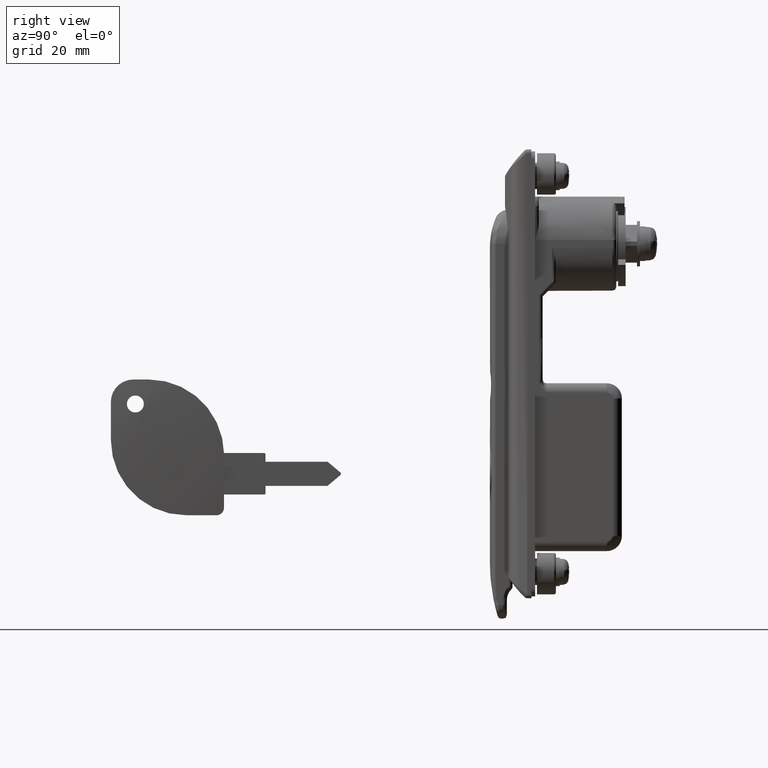
[diagram: clean part render]
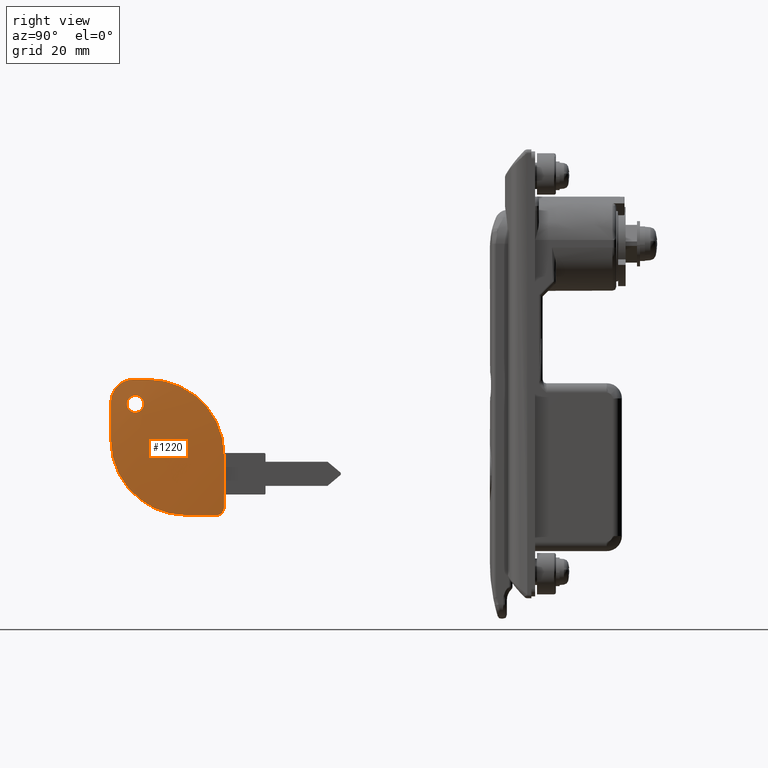
[diagram: same view with one face highlighted and labeled with its STEP entity id]
A machine part, right view. The second image highlights one B-rep face of the part: STEP entity #1220.
In plain terms, the highlighted face is a freeform B-spline surface patch.
Its self-contained STEP definition (entity closure, byte-faithful):
#97=CARTESIAN_POINT('',(2.828875296362364,-96.452702638445885,-44.133518693779713));
#98=VERTEX_POINT('',#97);
#104=CARTESIAN_POINT('',(2.667048114981276,-96.406992415235152,-40.911029630677390));
#105=VERTEX_POINT('',#104);
#106=CARTESIAN_POINT('',(2.828875296362364,-96.452702638445885,-44.133518693779713));
#107=CARTESIAN_POINT('',(2.828726183394759,-96.438598106582731,-44.120154340570402));
#108=CARTESIAN_POINT('',(2.828561309525941,-96.424661572767576,-44.106603493056447));
#109=CARTESIAN_POINT('',(2.827698927807004,-96.358903865655279,-44.041001061670052));
#110=CARTESIAN_POINT('',(2.826791651325440,-96.309318635101093,-43.986467362143628));
#111=CARTESIAN_POINT('',(2.825082339009326,-96.238654260348611,-43.900544496002993));
#112=CARTESIAN_POINT('',(2.824453535437805,-96.215708237355869,-43.871189940987797));
#113=CARTESIAN_POINT('',(2.823093322385487,-96.171568632427991,-43.811753777692012));
#114=CARTESIAN_POINT('',(2.822360464824501,-96.150307933269545,-43.781594017434870));
#115=CARTESIAN_POINT('',(2.818436854467718,-96.047981845679260,-43.628624002757988));
#116=CARTESIAN_POINT('',(2.814475540433375,-95.978735141806453,-43.499362088029237));
#117=CARTESIAN_POINT('',(2.807293883598614,-95.893876109521514,-43.295091360775359));
#118=CARTESIAN_POINT('',(2.804675596149899,-95.868678412614216,-43.224861893925997));
#119=CARTESIAN_POINT('',(2.799110259926788,-95.825696454351800,-43.083404937887593));
#120=CARTESIAN_POINT('',(2.796161769457340,-95.807823119249505,-43.012083185242112));
#121=CARTESIAN_POINT('',(2.786830866738487,-95.764792141238132,-42.796381385136563));
#122=CARTESIAN_POINT('',(2.779967756682102,-95.750120296560709,-42.650281724452611));
#123=CARTESIAN_POINT('',(2.764906878438518,-95.749883016257726,-42.353309127275537));
#124=CARTESIAN_POINT('',(2.756935393462760,-95.764364555910277,-42.206930246936842));
#125=CARTESIAN_POINT('',(2.744396135276574,-95.807018759593163,-41.991378500170043));
#126=CARTESIAN_POINT('',(2.740115778201556,-95.824751442016478,-41.920145612222271));
#127=CARTESIAN_POINT('',(2.731349613982473,-95.867393168468453,-41.778941085226478));
#128=CARTESIAN_POINT('',(2.726845390501597,-95.892443520939494,-41.708711073660787));
#129=CARTESIAN_POINT('',(2.713303437505498,-95.976910511948205,-41.504337928778767));
#130=CARTESIAN_POINT('',(2.704160066282355,-96.045833412699807,-41.375147751856147));
#131=CARTESIAN_POINT('',(2.690273916268545,-96.167907539935101,-41.191822994362482));
#132=CARTESIAN_POINT('',(2.685606141510780,-96.211840131866424,-41.132343804886148));
#133=CARTESIAN_POINT('',(2.676254921043923,-96.305775261684914,-41.017568958329662));
#134=CARTESIAN_POINT('',(2.671627975917776,-96.355196808499798,-40.962956837088271));
#135=CARTESIAN_POINT('',(2.667048114981276,-96.406992415235152,-40.911029630677390));
#136=B_SPLINE_CURVE_WITH_KNOTS('',3,(#106,#107,#108,#109,#110,#111,#112,#113,#114,#115,#116,#117,#118,#119,#120,#121,#122,#123,#124,#125,#126,#127,#128,#129,#130,#131,#132,#133,#134,#135),.UNSPECIFIED.,.F.,.U.,(4,2,2,2,2,2,2,2,2,2,2,2,2,2,4),(0.245861720330603,0.250000000000024,0.265625000000026,0.273437500000026,0.281250000000026,0.312500000000027,0.328125000000027,0.343750000000028,0.375000000000029,0.406250000000029,0.421875000000030,0.437500000000030,0.468750000000031,0.484375000000031,0.500000000000032),.UNSPECIFIED.);
#137=EDGE_CURVE('',#98,#105,#136,.T.);
#139=CARTESIAN_POINT('',(2.546915967441529,-99.547298223490387,-40.866482223460068));
#140=VERTEX_POINT('',#139);
#141=CARTESIAN_POINT('',(2.667048114981276,-96.406992415235152,-40.911029630677390));
#142=CARTESIAN_POINT('',(2.657888333182469,-96.510583627514436,-40.807175219781712));
#143=CARTESIAN_POINT('',(2.648915562410741,-96.623604116424076,-40.713984763369623));
#144=CARTESIAN_POINT('',(2.635742914315847,-96.807574898199377,-40.590529908884967));
#145=CARTESIAN_POINT('',(2.631395798349833,-96.871431565025787,-40.552115081103892));
#146=CARTESIAN_POINT('',(2.622989421535196,-97.001214927353786,-40.482489043147240));
#147=CARTESIAN_POINT('',(2.614821172302042,-97.133735091993117,-40.419580057274871));
#148=CARTESIAN_POINT('',(2.607121400689697,-97.271638692690104,-40.369883861223592));
#149=CARTESIAN_POINT('',(2.601524420650792,-97.377109782328063,-40.337626884498093));
#150=CARTESIAN_POINT('',(2.599688454514595,-97.412607979181715,-40.327711898449373));
#151=CARTESIAN_POINT('',(2.596076932572563,-97.484298396704460,-40.309585295568311));
#152=CARTESIAN_POINT('',(2.594296591907285,-97.520592997960549,-40.301355134843377));
#153=CARTESIAN_POINT('',(2.585626205184392,-97.702219020882197,-40.264874182033580));
#154=CARTESIAN_POINT('',(2.579406388909219,-97.848238961502517,-40.250335360847707));
#155=CARTESIAN_POINT('',(2.571119668271727,-98.068315466127203,-40.249842287637478));
#156=CARTESIAN_POINT('',(2.568532521367940,-98.141849997401863,-40.253256201991512));
#157=CARTESIAN_POINT('',(2.564922027854485,-98.252422923365046,-40.263898924184879));
#158=CARTESIAN_POINT('',(2.563761294002924,-98.289410150780881,-40.268384421094439));
#159=CARTESIAN_POINT('',(2.561554613804322,-98.362715328517709,-40.279120996983792));
#160=CARTESIAN_POINT('',(2.560506129694975,-98.399104386532599,-40.285374668371013));
#161=CARTESIAN_POINT('',(2.555533187125004,-98.579755142349683,-40.320992267119571));
#162=CARTESIAN_POINT('',(2.552409479021011,-98.720170165098821,-40.363279854263297));
#163=CARTESIAN_POINT('',(2.549575357273018,-98.890547010761480,-40.433414680455279));
#164=CARTESIAN_POINT('',(2.549062539431305,-98.924362972378532,-40.448313176635253));
#165=CARTESIAN_POINT('',(2.548146958662613,-98.991466283929981,-40.479886144843782));
#166=CARTESIAN_POINT('',(2.547744226646668,-99.024781919716844,-40.496582132331362));
#167=CARTESIAN_POINT('',(2.546714969775443,-99.122825057770427,-40.548785740388738));
#168=CARTESIAN_POINT('',(2.546261339050060,-99.186024862542638,-40.586567958053791));
#169=CARTESIAN_POINT('',(2.545638315654826,-99.353592602754134,-40.698156545297053));
#170=CARTESIAN_POINT('',(2.545925340508768,-99.453716627025244,-40.777811378632961));
#171=CARTESIAN_POINT('',(2.546915967441529,-99.547298223490387,-40.866482223460068));
#172=B_SPLINE_CURVE_WITH_KNOTS('',3,(#141,#142,#143,#144,#145,#146,#147,#148,#149,#150,#151,#152,#153,#154,#155,#156,#157,#158,#159,#160,#161,#162,#163,#164,#165,#166,#167,#168,#169,#170,#171),.UNSPECIFIED.,.F.,.U.,(4,2,2,1,2,2,2,2,2,2,2,2,2,2,2,4),(0.500000000000032,0.531250000000032,0.546875000000032,0.562500000000032,0.578125000000033,0.585937500000033,0.593750000000032,0.625000000000033,0.640625000000033,0.648437500000032,0.656250000000032,0.687500000000032,0.695312500000032,0.703125000000031,0.718750000000029,0.745981095793426),.UNSPECIFIED.);
#173=EDGE_CURVE('',#105,#140,#172,.T.);
#238=CARTESIAN_POINT('',(2.708879866066321,-99.592452694795000,-44.089526475129432));
#239=VERTEX_POINT('',#238);
#240=CARTESIAN_POINT('',(2.546915967441529,-99.547298223490387,-40.866482223460068));
#241=CARTESIAN_POINT('',(2.547062169474035,-99.561109489122316,-40.879568703143782));
#242=CARTESIAN_POINT('',(2.547223696919965,-99.574778251778554,-40.892851563828451));
#243=CARTESIAN_POINT('',(2.548088457016297,-99.640889901366776,-40.958740592328333));
#244=CARTESIAN_POINT('',(2.549006043035972,-99.690795780970959,-41.013691561559263));
#245=CARTESIAN_POINT('',(2.551268540412535,-99.784296130856518,-41.127341635902603));
#246=CARTESIAN_POINT('',(2.553963010845373,-99.871851976180452,-41.245102533171242));
#247=CARTESIAN_POINT('',(2.557512625849673,-99.947639300240553,-41.371001756060487));
#248=CARTESIAN_POINT('',(2.561497849527534,-100.017431355083200,-41.501046908646252));
#249=CARTESIAN_POINT('',(2.563721643868466,-100.049450556310010,-41.568495139521247));
#250=CARTESIAN_POINT('',(2.570924600003502,-100.134485282639800,-41.773160612965093));
#251=CARTESIAN_POINT('',(2.576447632712533,-100.177162970461590,-41.913447006782633));
#252=CARTESIAN_POINT('',(2.585795702432685,-100.220507877315500,-42.129545679680412));
#253=CARTESIAN_POINT('',(2.589092276963986,-100.231490859336800,-42.202573543343391));
#254=CARTESIAN_POINT('',(2.596046939227389,-100.246250621379000,-42.350424559109683));
#255=CARTESIAN_POINT('',(2.599650563100094,-100.249916530810590,-42.424093339753462));
#256=CARTESIAN_POINT('',(2.610827066714656,-100.250160085678500,-42.644356305738583));
#257=CARTESIAN_POINT('',(2.618762162623402,-100.236084000933200,-42.790214058259700));
#258=CARTESIAN_POINT('',(2.631402684214461,-100.193260435111800,-43.007500046690907));
#259=CARTESIAN_POINT('',(2.635751949118363,-100.175248864784090,-43.079842482775938));
#260=CARTESIAN_POINT('',(2.644511648426171,-100.132662357496000,-43.220886010158083));
#261=CARTESIAN_POINT('',(2.653376175337334,-100.083400925397900,-43.359065496499127));
#262=CARTESIAN_POINT('',(2.662446463014014,-100.021034726331390,-43.491622062552040));
#263=CARTESIAN_POINT('',(2.671620666473789,-99.952049188723421,-43.621338440819542));
#264=CARTESIAN_POINT('',(2.676274040727564,-99.914120009155141,-43.684964833450650));
#265=CARTESIAN_POINT('',(2.690298629908490,-99.790873886838398,-43.870131424489003));
#266=CARTESIAN_POINT('',(2.699609001477077,-99.697361702533584,-43.984424339612389));
#267=CARTESIAN_POINT('',(2.708879866066321,-99.592452694795000,-44.089526475129432));
#268=B_SPLINE_CURVE_WITH_KNOTS('',3,(#240,#241,#242,#243,#244,#245,#246,#247,#248,#249,#250,#251,#252,#253,#254,#255,#256,#257,#258,#259,#260,#261,#262,#263,#264,#265,#266,#267),.UNSPECIFIED.,.F.,.U.,(4,2,2,1,2,2,2,2,2,2,2,1,2,2,4),(0.745981095793426,0.750000000000026,0.765625000000024,0.781250000000022,0.796875000000020,0.812500000000019,0.843750000000015,0.859375000000013,0.875000000000012,0.906250000000008,0.921875000000007,0.937500000000005,0.953125000000004,0.968750000000002,1.0),.UNSPECIFIED.);
#269=EDGE_CURVE('',#140,#239,#268,.T.);
#271=CARTESIAN_POINT('',(2.708879866066321,-99.592452694795000,-44.089526475129432));
#272=CARTESIAN_POINT('',(2.718150666860088,-99.487543692313736,-44.194628605809847));
#273=CARTESIAN_POINT('',(2.727131565942305,-99.374072619918962,-44.287702283152193));
#274=CARTESIAN_POINT('',(2.740185725543342,-99.191541162181579,-44.409998180477430));
#275=CARTESIAN_POINT('',(2.744467065712962,-99.128627971056815,-44.447856313303149));
#276=CARTESIAN_POINT('',(2.752886456502936,-98.998567521341329,-44.517624327367301));
#277=CARTESIAN_POINT('',(2.757035989337222,-98.931189360861595,-44.549589828923352));
#278=CARTESIAN_POINT('',(2.769000371683740,-98.726978462880012,-44.634416319500573));
#279=CARTESIAN_POINT('',(2.776422683978060,-98.586826381103933,-44.677095010240762));
#280=CARTESIAN_POINT('',(2.786732482611003,-98.370631783558323,-44.720480049390162));
#281=CARTESIAN_POINT('',(2.790040700343297,-98.297332226116552,-44.731500646378180));
#282=CARTESIAN_POINT('',(2.796326141391256,-98.149677283066893,-44.746240780370492));
#283=CARTESIAN_POINT('',(2.799273233178814,-98.076058982710677,-44.749911258861502));
#284=CARTESIAN_POINT('',(2.807545971213975,-97.855812043545171,-44.750169773314212));
#285=CARTESIAN_POINT('',(2.812308468420797,-97.709785605502333,-44.736106784962367));
#286=CARTESIAN_POINT('',(2.817298307020536,-97.528282845221852,-44.700305644295547));
#287=CARTESIAN_POINT('',(2.818250099500258,-97.491932849293960,-44.692198882589643));
#288=CARTESIAN_POINT('',(2.820038993045142,-97.419962138365321,-44.674263982064168));
#289=CARTESIAN_POINT('',(2.820876661442026,-97.384333351368724,-44.664441058386053));
#290=CARTESIAN_POINT('',(2.823222499149624,-97.278496836341816,-44.632453513766983));
#291=CARTESIAN_POINT('',(2.825905296480414,-97.140176090697281,-44.583098676291989));
#292=CARTESIAN_POINT('',(2.827711786456793,-97.007359028499692,-44.520539491648996));
#293=CARTESIAN_POINT('',(2.828733621618308,-96.909837930378501,-44.468601734795641));
#294=CARTESIAN_POINT('',(2.829018629409513,-96.877680132655016,-44.450451270402468));
#295=CARTESIAN_POINT('',(2.829475454989107,-96.814075464721981,-44.412444696176507));
#296=CARTESIAN_POINT('',(2.829647312146088,-96.782559341093020,-44.392538176089218));
#297=CARTESIAN_POINT('',(2.830152835925963,-96.644723332569299,-44.300626017741799));
#298=CARTESIAN_POINT('',(2.829852306692927,-96.545107624721965,-44.221074659712357));
#299=CARTESIAN_POINT('',(2.828875296362364,-96.452702638445885,-44.133518693779713));
#300=B_SPLINE_CURVE_WITH_KNOTS('',3,(#271,#272,#273,#274,#275,#276,#277,#278,#279,#280,#281,#282,#283,#284,#285,#286,#287,#288,#289,#290,#291,#292,#293,#294,#295,#296,#297,#298,#299),.UNSPECIFIED.,.F.,.U.,(4,2,2,2,2,2,2,2,2,2,1,2,2,2,4),(0.0,0.031250000000003,0.046875000000005,0.062500000000006,0.093750000000010,0.109375000000011,0.125000000000013,0.156250000000016,0.164062500000016,0.171875000000017,0.187500000000018,0.203125000000019,0.210937500000020,0.218750000000021,0.245861720330603),.UNSPECIFIED.);
#301=EDGE_CURVE('',#239,#98,#300,.T.);
#343=CARTESIAN_POINT('',(2.379972732826440,-94.500000000000000,-36.000000000093287));
#344=VERTEX_POINT('',#343);
#367=CARTESIAN_POINT('',(2.256171987171230,-98.500000000000000,-36.000000000093287));
#368=VERTEX_POINT('',#367);
#374=CARTESIAN_POINT('',(2.379972732826440,-94.500000000000000,-36.000000000093287));
#375=CARTESIAN_POINT('',(2.335758322291959,-96.500547383830664,-36.000000000093294));
#376=CARTESIAN_POINT('',(2.256171987171174,-98.499999999999943,-36.000000000093287));
#384=(BOUNDED_CURVE()B_SPLINE_CURVE(2,(#374,#375,#376),.UNSPECIFIED.,.F.,.U.)CURVE()GEOMETRIC_REPRESENTATION_ITEM()QUASI_UNIFORM_CURVE()RATIONAL_B_SPLINE_CURVE((1.0,0.999960903135179,1.0))REPRESENTATION_ITEM(''));
#385=EDGE_CURVE('',#344,#368,#384,.T.);
#443=CARTESIAN_POINT('',(2.335768081666021,-104.500000000000000,-42.000000000093287));
#444=VERTEX_POINT('',#443);
#450=CARTESIAN_POINT('',(2.256171987171215,-98.500000000000000,-36.000000000093287));
#451=CARTESIAN_POINT('',(2.240409096742935,-98.896012110086218,-36.000000000093287));
#452=CARTESIAN_POINT('',(2.226964814871631,-99.285496459952682,-36.038822154427912));
#453=CARTESIAN_POINT('',(2.210139901969480,-99.860320261940558,-36.152975946438623));
#454=CARTESIAN_POINT('',(2.205092633872675,-100.050349469581800,-36.200416326043339));
#455=CARTESIAN_POINT('',(2.198383149576241,-100.332969804762300,-36.285990001645253));
#456=CARTESIAN_POINT('',(2.196287018689842,-100.426940177698300,-36.316981994153643));
#457=CARTESIAN_POINT('',(2.192404658470355,-100.613295687898500,-36.383615625803039));
#458=CARTESIAN_POINT('',(2.190626344733202,-100.705275016925000,-36.419102013485762));
#459=CARTESIAN_POINT('',(2.182532767821822,-101.159300168484410,-36.607163417273583));
#460=CARTESIAN_POINT('',(2.178588811273432,-101.503898575674200,-36.791324383200283));
#461=CARTESIAN_POINT('',(2.176796761029338,-101.911562426488900,-37.063316033997893));
#462=CARTESIAN_POINT('',(2.176596654987142,-101.991930603189300,-37.119822687784179));
#463=CARTESIAN_POINT('',(2.176518167274596,-102.150300149062500,-37.237120749175759));
#464=CARTESIAN_POINT('',(2.176640745109080,-102.228507025060910,-37.298084358613004));
#465=CARTESIAN_POINT('',(2.177495206414470,-102.457847363459090,-37.486182813978992));
#466=CARTESIAN_POINT('',(2.178706892148512,-102.603371775537000,-37.618148236136648));
#467=CARTESIAN_POINT('',(2.184207971524591,-103.018526481423900,-38.033129990258537));
#468=CARTESIAN_POINT('',(2.190345758975425,-103.266940954606990,-38.335051180021210));
#469=CARTESIAN_POINT('',(2.201179225064926,-103.541165540580200,-38.744792865766712));
#470=CARTESIAN_POINT('',(2.203512487187093,-103.594310538502000,-38.828604588494862));
#471=CARTESIAN_POINT('',(2.208456909533534,-103.695900519026690,-38.997939621656833));
#472=CARTESIAN_POINT('',(2.211069518540356,-103.744417351884190,-39.083544107138380));
#473=CARTESIAN_POINT('',(2.219320715814653,-103.883259584916900,-39.343116565205129));
#474=CARTESIAN_POINT('',(2.231422684907534,-104.050525498881500,-39.696557498592107));
#475=CARTESIAN_POINT('',(2.245691445236323,-104.182619618658510,-40.064464044152487));
#476=CARTESIAN_POINT('',(2.257216328481200,-104.268322360081600,-40.345891949826168));
#477=CARTESIAN_POINT('',(2.261195416932603,-104.294658034335000,-40.440619201439233));
#478=CARTESIAN_POINT('',(2.269433374507513,-104.342786014384300,-40.631942325794029));
#479=CARTESIAN_POINT('',(2.273698959629405,-104.364596030430700,-40.728678046861262));
#480=CARTESIAN_POINT('',(2.295541116425622,-104.461221344483310,-41.212740306803397));
#481=CARTESIAN_POINT('',(2.314771217476095,-104.500000000000000,-41.604234012261827));
#482=CARTESIAN_POINT('',(2.335768081666012,-104.500000000000000,-42.000000000093287));
#483=B_SPLINE_CURVE_WITH_KNOTS('',3,(#450,#451,#452,#453,#454,#455,#456,#457,#458,#459,#460,#461,#462,#463,#464,#465,#466,#467,#468,#469,#470,#471,#472,#473,#474,#475,#476,#477,#478,#479,#480,#481,#482),.UNSPECIFIED.,.F.,.U.,(4,2,2,2,2,2,2,2,2,2,2,2,1,2,2,2,4),(0.0,0.124999999999997,0.187499999999995,0.218749999999994,0.249999999999993,0.374999999999994,0.406249999999994,0.437499999999993,0.499999999999993,0.624999999999994,0.656249999999995,0.687499999999995,0.749999999999996,0.812499999999997,0.843749999999997,0.874999999999998,1.0),.UNSPECIFIED.);
#484=EDGE_CURVE('',#368,#444,#483,.T.);
#1007=CARTESIAN_POINT('',(1.685316911049965,-73.015712504248043,-73.775925971710606));
#1008=CARTESIAN_POINT('',(2.636925015147679,-72.990766978533728,-62.902480841995676));
#1009=CARTESIAN_POINT('',(2.460608672382777,-72.985309954857513,-43.109386258473279));
#1010=CARTESIAN_POINT('',(1.687499212302668,-72.997405532494781,-34.264271503366352));
#1011=CARTESIAN_POINT('',(2.538269803344741,-84.742911211667675,-73.823669418393408));
#1012=CARTESIAN_POINT('',(3.494425764543247,-84.745158768742741,-62.921025035208032));
#1013=CARTESIAN_POINT('',(3.317634147072789,-84.739687035225785,-43.074576593201883));
#1014=CARTESIAN_POINT('',(2.541127697947788,-84.733762905852146,-34.205709206528006));
#1015=CARTESIAN_POINT('',(2.027858830451701,-101.234281120851150,-73.823669418393393));
#1016=CARTESIAN_POINT('',(2.982828321669276,-101.274863502961000,-62.921025035208032));
#1017=CARTESIAN_POINT('',(2.806036704198818,-101.269391769444000,-43.074576593201883));
#1018=CARTESIAN_POINT('',(2.030315961604440,-101.238081475342880,-34.205709206527992));
#1019=CARTESIAN_POINT('',(1.683391383893902,-105.962737231470750,-73.815890094632593));
#1020=CARTESIAN_POINT('',(2.637142183547559,-106.014288500680660,-62.918003426049587));
#1021=CARTESIAN_POINT('',(2.460428007807061,-106.008819163999650,-43.080248514443277));
#1022=CARTESIAN_POINT('',(1.685577090422525,-105.970246979566800,-34.215251372040129));
#1030=(BOUNDED_SURFACE()B_SPLINE_SURFACE(2,2,((#1007,#1011,#1015,#1019),(#1008,#1012,#1016,#1020),(#1009,#1013,#1017,#1021),(#1010,#1014,#1018,#1022)),.UNSPECIFIED.,.F.,.F.,.U.)B_SPLINE_SURFACE_WITH_KNOTS((3,1,3),(3,1,3),(81.675755795288083,102.986212040197800,120.321222964477500),(80.037916306304936,102.986212040197700,112.239076491546600),.UNSPECIFIED.)GEOMETRIC_REPRESENTATION_ITEM()RATIONAL_B_SPLINE_SURFACE(((1.005020117969624,1.002324538546275,1.002324538546275,1.002762770112224),(1.002695579423349,1.0,1.0,1.000438231565949),(1.002695579423349,1.0,1.0,1.000438231565949),(1.004233732278347,1.001538152854998,1.001538152854998,1.001976384420946)))REPRESENTATION_ITEM('')SURFACE());
#1031=ORIENTED_EDGE('',*,*,#484,.T.);
#1032=CARTESIAN_POINT('',(2.645036772766617,-104.500000000000000,-52.000000000093273));
#1033=VERTEX_POINT('',#1032);
#1034=CARTESIAN_POINT('',(2.335768081665935,-104.500000000000000,-42.000000000093308));
#1035=CARTESIAN_POINT('',(2.600855531180747,-104.500000000000040,-46.996584031404616));
#1036=CARTESIAN_POINT('',(2.645036772766531,-104.500000000000000,-52.000000000093323));
#1044=(BOUNDED_CURVE()B_SPLINE_CURVE(2,(#1034,#1035,#1036),.UNSPECIFIED.,.F.,.U.)CURVE()GEOMETRIC_REPRESENTATION_ITEM()QUASI_UNIFORM_CURVE()RATIONAL_B_SPLINE_CURVE((1.0,0.999756091502555,1.0))REPRESENTATION_ITEM(''));
#1045=EDGE_CURVE('',#444,#1033,#1044,.T.);
#1046=ORIENTED_EDGE('',*,*,#1045,.T.);
#1047=CARTESIAN_POINT('',(2.379970257466085,-84.500000000000000,-72.000000000093280));
#1048=VERTEX_POINT('',#1047);
#1049=CARTESIAN_POINT('',(2.645036772766596,-104.500000000000000,-52.000000000093273));
#1050=CARTESIAN_POINT('',(2.650867335530167,-104.500000000000000,-52.660296763846219));
#1051=CARTESIAN_POINT('',(2.655928686865524,-104.467385300693190,-53.315044898617202));
#1052=CARTESIAN_POINT('',(2.664566787566237,-104.339196334786390,-54.613830067498128));
#1053=CARTESIAN_POINT('',(2.668143385095052,-104.243615654748400,-55.257866010514377));
#1054=CARTESIAN_POINT('',(2.673821125648045,-103.989873856355100,-56.535291294778439));
#1055=CARTESIAN_POINT('',(2.675922326517344,-103.831715199728390,-57.168681054832888));
#1056=CARTESIAN_POINT('',(2.677605779286877,-103.594014745743710,-57.953612824663608));
#1057=CARTESIAN_POINT('',(2.677895208446813,-103.544469934438200,-58.110258122180198));
#1058=CARTESIAN_POINT('',(2.678378570457440,-103.441329529223590,-58.422859571001680));
#1059=CARTESIAN_POINT('',(2.678572669681693,-103.387659809030890,-58.579019884251082));
#1060=CARTESIAN_POINT('',(2.679008632978310,-103.221075570344690,-59.044864248660851));
#1061=CARTESIAN_POINT('',(2.679104403669572,-103.102792467341900,-59.351422759115557));
#1062=CARTESIAN_POINT('',(2.678818982730250,-102.726702878734400,-60.259329199839897));
#1063=CARTESIAN_POINT('',(2.677866418448080,-102.447706461458590,-60.848935936914501));
#1064=CARTESIAN_POINT('',(2.674465252943963,-101.834233751269200,-61.997408399123920));
#1065=CARTESIAN_POINT('',(2.672016619089254,-101.499756243775290,-62.556273451268687));
#1066=CARTESIAN_POINT('',(2.667210395669915,-100.956017126706200,-63.371286457943810));
#1067=CARTESIAN_POINT('',(2.665419108163381,-100.767754575072000,-63.639069844127043));
#1068=CARTESIAN_POINT('',(2.662443813291860,-100.474668723691490,-64.034820547387739));
#1069=CARTESIAN_POINT('',(2.661403965121495,-100.375190599219290,-64.165749588867769));
#1070=CARTESIAN_POINT('',(2.659227062495324,-100.172630255997700,-64.425610668269456));
#1071=CARTESIAN_POINT('',(2.658088648760479,-100.069433058314900,-64.554676215782521));
#1072=CARTESIAN_POINT('',(2.652182569720967,-99.547109048736075,-65.191617015672321));
#1073=CARTESIAN_POINT('',(2.646757937285689,-99.107381920191401,-65.676605233484992));
#1074=CARTESIAN_POINT('',(2.634552656146524,-98.185561401069663,-66.598991280655241));
#1075=CARTESIAN_POINT('',(2.627771893781771,-97.703464445581020,-67.036385105523820));
#1076=CARTESIAN_POINT('',(2.612857522933834,-96.697014731806959,-67.863706440790537));
#1077=CARTESIAN_POINT('',(2.604723991389221,-96.172664354544409,-68.253636625823901));
#1078=CARTESIAN_POINT('',(2.593689026714485,-95.490121346002184,-68.710602026758664));
#1079=CARTESIAN_POINT('',(2.591438529919018,-95.352254332341488,-68.800469190652336));
#1080=CARTESIAN_POINT('',(2.586849543634366,-95.073772947512680,-68.977117387070308));
#1081=CARTESIAN_POINT('',(2.584512640340103,-94.933258984227024,-69.063826999523044));
#1082=CARTESIAN_POINT('',(2.577408804728094,-94.509926621967381,-69.317901391905110));
#1083=CARTESIAN_POINT('',(2.572536711407459,-94.224582090008852,-69.479688255409044));
#1084=CARTESIAN_POINT('',(2.557519300976693,-93.359353071600168,-69.942682532705533));
#1085=CARTESIAN_POINT('',(2.536428298521486,-92.181236638708953,-70.500470260737870));
#1086=CARTESIAN_POINT('',(2.513233412474324,-90.954912489437191,-70.941000814134966));
#1087=CARTESIAN_POINT('',(2.495037338507946,-90.016848519144474,-71.226836302193746));
#1088=CARTESIAN_POINT('',(2.488838427041538,-89.701101665705849,-71.314674624187873));
#1089=CARTESIAN_POINT('',(2.476168690776915,-89.063381476848647,-71.475206388432440));
#1090=CARTESIAN_POINT('',(2.469685790127340,-88.740826425945059,-71.547987781525677));
#1091=CARTESIAN_POINT('',(2.449993031713526,-87.772082467275993,-71.741509988932577));
#1092=CARTESIAN_POINT('',(2.436497845476413,-87.122657543777962,-71.838150813949753));
#1093=CARTESIAN_POINT('',(2.408781746380698,-85.816695410357070,-71.967395260907693));
#1094=CARTESIAN_POINT('',(2.394560846801375,-85.160158324507890,-72.000000000093280));
#1095=CARTESIAN_POINT('',(2.379970257465505,-84.500000000000000,-72.000000000093280));
#1096=B_SPLINE_CURVE_WITH_KNOTS('',3,(#1049,#1050,#1051,#1052,#1053,#1054,#1055,#1056,#1057,#1058,#1059,#1060,#1061,#1062,#1063,#1064,#1065,#1066,#1067,#1068,#1069,#1070,#1071,#1072,#1073,#1074,#1075,#1076,#1077,#1078,#1079,#1080,#1081,#1082,#1083,#1084,#1085,#1086,#1087,#1088,#1089,#1090,#1091,#1092,#1093,#1094,#1095),.UNSPECIFIED.,.F.,.U.,(4,2,2,2,2,2,2,2,2,2,2,2,2,2,2,2,2,2,1,2,2,2,2,4),(0.0,0.062500000000000,0.125000000000001,0.187500000000001,0.203125000000001,0.218750000000001,0.250000000000001,0.312500000000001,0.375000000000001,0.406250000000001,0.421875000000001,0.437500000000001,0.500000000000001,0.562500000000001,0.625000000000001,0.640625000000001,0.656250000000001,0.687500000000001,0.750000000000001,0.812500000000001,0.843750000000001,0.875000000000001,0.937500000000000,1.0),.UNSPECIFIED.);
#1097=EDGE_CURVE('',#1033,#1048,#1096,.T.);
#1098=ORIENTED_EDGE('',*,*,#1097,.T.);
#1099=CARTESIAN_POINT('',(2.061483875189371,-76.500000000000000,-72.000000000093280));
#1100=VERTEX_POINT('',#1099);
#1101=CARTESIAN_POINT('',(2.379970257466085,-84.500000000000000,-72.000000000093280));
#1102=CARTESIAN_POINT('',(2.291501377570781,-80.497182418206592,-72.000000000093280));
#1103=CARTESIAN_POINT('',(2.061483875189285,-76.500000000000057,-72.000000000093280));
#1111=(BOUNDED_CURVE()B_SPLINE_CURVE(2,(#1101,#1102,#1103),.UNSPECIFIED.,.F.,.U.)CURVE()GEOMETRIC_REPRESENTATION_ITEM()QUASI_UNIFORM_CURVE()RATIONAL_B_SPLINE_CURVE((1.0,0.999843505395634,1.0))REPRESENTATION_ITEM(''));
#1112=EDGE_CURVE('',#1048,#1100,#1111,.T.);
#1113=ORIENTED_EDGE('',*,*,#1112,.T.);
#1114=CARTESIAN_POINT('',(2.088040893285101,-74.500000000000000,-70.000000000093280));
#1115=VERTEX_POINT('',#1114);
#1116=CARTESIAN_POINT('',(2.061483875189377,-76.500000000000000,-72.000000000093280));
#1117=CARTESIAN_POINT('',(2.053891719262164,-76.368065552080438,-72.000000000093280));
#1118=CARTESIAN_POINT('',(2.047338273678244,-76.238277553399158,-71.987072671512863));
#1119=CARTESIAN_POINT('',(2.039006477820304,-76.046691085238621,-71.949038259835035));
#1120=CARTESIAN_POINT('',(2.036480783524397,-75.983348659426824,-71.933229948479294));
#1121=CARTESIAN_POINT('',(2.031944661841115,-75.857728204254087,-71.895202781180828));
#1122=CARTESIAN_POINT('',(2.029932436706226,-75.795291040431835,-71.872880003877754));
#1123=CARTESIAN_POINT('',(2.024807198154092,-75.613659953951554,-71.797659096767717));
#1124=CARTESIAN_POINT('',(2.022543263301304,-75.498763502008586,-71.736265207113817));
#1125=CARTESIAN_POINT('',(2.020863954315411,-75.335635971342981,-71.627430261970758));
#1126=CARTESIAN_POINT('',(2.020592581417309,-75.282615798572280,-71.588182125889318));
#1127=CARTESIAN_POINT('',(2.020648291795723,-75.180663655045748,-71.504559193832947));
#1128=CARTESIAN_POINT('',(2.020972721981780,-75.132143706727632,-71.460556620860444));
#1129=CARTESIAN_POINT('',(2.022808151036057,-74.993723862906506,-71.322179308987941));
#1130=CARTESIAN_POINT('',(2.025173124321062,-74.910896299245223,-71.221495345020628));
#1131=CARTESIAN_POINT('',(2.029590668816328,-74.819465234237100,-71.084842957231189));
#1132=CARTESIAN_POINT('',(2.030550765883218,-74.801748316689697,-71.056893733569026));
#1133=CARTESIAN_POINT('',(2.032600792657837,-74.767893622284163,-71.000445220983806));
#1134=CARTESIAN_POINT('',(2.033691625800959,-74.751725555078892,-70.971908567281588));
#1135=CARTESIAN_POINT('',(2.037157937324859,-74.705457222438653,-70.885378682045484));
#1136=CARTESIAN_POINT('',(2.042295604535647,-74.649717882815068,-70.767556710069115));
#1137=CARTESIAN_POINT('',(2.048449414963846,-74.605702261161312,-70.644911136082925));
#1138=CARTESIAN_POINT('',(2.055118150375507,-74.567628272965848,-70.519820935850817));
#1139=CARTESIAN_POINT('',(2.058728252515516,-74.551509262417625,-70.455752602196611));
#1140=CARTESIAN_POINT('',(2.070212569758342,-74.512906826586558,-70.262234771332373));
#1141=CARTESIAN_POINT('',(2.078705796739847,-74.499999999999957,-70.131822088978723));
#1142=CARTESIAN_POINT('',(2.088040893272938,-74.500000000000000,-70.000000000092498));
#1143=B_SPLINE_CURVE_WITH_KNOTS('',3,(#1116,#1117,#1118,#1119,#1120,#1121,#1122,#1123,#1124,#1125,#1126,#1127,#1128,#1129,#1130,#1131,#1132,#1133,#1134,#1135,#1136,#1137,#1138,#1139,#1140,#1141,#1142),.UNSPECIFIED.,.F.,.U.,(4,2,2,2,2,2,2,2,2,2,1,2,2,4),(0.0,0.124999999999999,0.187499999999998,0.249999999999998,0.374999999999998,0.437499999999997,0.499999999999997,0.624999999999997,0.656249999999997,0.687499999999997,0.749999999999998,0.812499999999998,0.874999999999999,1.0),.UNSPECIFIED.);
#1144=EDGE_CURVE('',#1100,#1115,#1143,.T.);
#1145=ORIENTED_EDGE('',*,*,#1144,.T.);
#1146=CARTESIAN_POINT('',(2.645029355385434,-74.500000000000000,-56.000000000093280));
#1147=VERTEX_POINT('',#1146);
#1148=CARTESIAN_POINT('',(2.088040893285101,-74.500000000000000,-70.000000000093280));
#1149=CARTESIAN_POINT('',(2.583141748484007,-74.500000000000000,-63.008617670840735));
#1150=CARTESIAN_POINT('',(2.645029355385379,-74.500000000000000,-56.000000000093323));
#1158=(BOUNDED_CURVE()B_SPLINE_CURVE(2,(#1148,#1149,#1150),.UNSPECIFIED.,.F.,.U.)CURVE()GEOMETRIC_REPRESENTATION_ITEM()QUASI_UNIFORM_CURVE()RATIONAL_B_SPLINE_CURVE((1.0,0.999521584055858,1.0))REPRESENTATION_ITEM(''));
#1159=EDGE_CURVE('',#1115,#1147,#1158,.T.);
#1160=ORIENTED_EDGE('',*,*,#1159,.T.);
#1161=CARTESIAN_POINT('',(2.645029355385434,-74.500000000000000,-56.000000000093280));
#1162=CARTESIAN_POINT('',(2.650859918315993,-74.500000000000000,-55.339703239049364));
#1163=CARTESIAN_POINT('',(2.655921285926292,-74.532614699039684,-54.684955107020457));
#1164=CARTESIAN_POINT('',(2.664559450267306,-74.660803663857791,-53.386169943680891));
#1165=CARTESIAN_POINT('',(2.668136095164644,-74.756384343074416,-52.742134003463953));
#1166=CARTESIAN_POINT('',(2.673813961357449,-75.010126139221398,-51.464708724846503));
#1167=CARTESIAN_POINT('',(2.675915240496857,-75.168284794423627,-50.831318967639362));
#1168=CARTESIAN_POINT('',(2.677598810859789,-75.405985246197559,-50.046387201390907));
#1169=CARTESIAN_POINT('',(2.677888264528483,-75.455530057039297,-49.889741904591929));
#1170=CARTESIAN_POINT('',(2.678371677557308,-75.558670461281295,-49.577140457207747));
#1171=CARTESIAN_POINT('',(2.678565803327602,-75.612340180936741,-49.420980144751240));
#1172=CARTESIAN_POINT('',(2.679001849016504,-75.778924418335478,-48.955135781659337));
#1173=CARTESIAN_POINT('',(2.679097678204253,-75.897207520436339,-48.648577272047582));
#1174=CARTESIAN_POINT('',(2.678812443243118,-76.273297106209895,-47.740670833747380));
#1175=CARTESIAN_POINT('',(2.677860016906410,-76.552293521426222,-47.151064098149710));
#1176=CARTESIAN_POINT('',(2.674459154698982,-77.165766227155359,-46.002591638616920));
#1177=CARTESIAN_POINT('',(2.672010686196082,-77.500243732248506,-45.443726587671883));
#1178=CARTESIAN_POINT('',(2.667204731572665,-78.043982845444205,-44.628713582578627));
#1179=CARTESIAN_POINT('',(2.665413537132271,-78.232245395741700,-44.360930196886308));
#1180=CARTESIAN_POINT('',(2.662438387145553,-78.525331245045109,-43.965179494305048));
#1181=CARTESIAN_POINT('',(2.661398588151485,-78.624809368812890,-43.834250453042003));
#1182=CARTESIAN_POINT('',(2.659221785659835,-78.827369710600919,-43.574389374054803));
#1183=CARTESIAN_POINT('',(2.658083422938155,-78.930566907731304,-43.445323826511483));
#1184=CARTESIAN_POINT('',(2.652177602086664,-79.452890915510579,-42.808383025301310));
#1185=CARTESIAN_POINT('',(2.646753187011219,-79.892618042648650,-42.323394806398909));
#1186=CARTESIAN_POINT('',(2.634548361551133,-80.814438559005239,-41.401008756966277));
#1187=CARTESIAN_POINT('',(2.627767837507376,-81.296535513135439,-40.963614930925097));
#1188=CARTESIAN_POINT('',(2.612853964225307,-82.302985224224798,-40.136293593212230));
#1189=CARTESIAN_POINT('',(2.604720691924325,-82.827335600161177,-39.746363406905417));
#1190=CARTESIAN_POINT('',(2.593686064738443,-83.509878607055441,-39.289398004301503));
#1191=CARTESIAN_POINT('',(2.591435636114042,-83.647745620387042,-39.199530840070132));
#1192=CARTESIAN_POINT('',(2.586846787533526,-83.926227004558328,-39.022882642968540));
#1193=CARTESIAN_POINT('',(2.584509953708098,-84.066740968394086,-38.936173029625223));
#1194=CARTESIAN_POINT('',(2.577406327401171,-84.490073331809839,-38.682098634971332));
#1195=CARTESIAN_POINT('',(2.572534375168167,-84.775417864549937,-38.520311770033032));
#1196=CARTESIAN_POINT('',(2.557517392571038,-85.640646885327556,-38.057317488650703));
#1197=CARTESIAN_POINT('',(2.536426977177789,-86.818763202293354,-37.499529465973637));
#1198=CARTESIAN_POINT('',(2.513232693294456,-88.045087473991771,-37.058999198442983));
#1199=CARTESIAN_POINT('',(2.495037083424169,-88.983151446742056,-36.773163707763501));
#1200=CARTESIAN_POINT('',(2.488838328181718,-89.298898300999667,-36.685325384947603));
#1201=CARTESIAN_POINT('',(2.476168907472001,-89.936618491490862,-36.524793619156164));
#1202=CARTESIAN_POINT('',(2.469686166427186,-90.259173543920554,-36.452012225157517));
#1203=CARTESIAN_POINT('',(2.449993887354513,-91.227917509447906,-36.258490014950127));
#1204=CARTESIAN_POINT('',(2.436499022509025,-91.877342437553949,-36.161849188548977));
#1205=CARTESIAN_POINT('',(2.408783569830916,-93.183304580258152,-36.032604739742922));
#1206=CARTESIAN_POINT('',(2.394562995277541,-93.839841670782704,-36.000000000093280));
#1207=CARTESIAN_POINT('',(2.379972732822774,-94.499999999999915,-36.000000000093273));
#1208=B_SPLINE_CURVE_WITH_KNOTS('',3,(#1161,#1162,#1163,#1164,#1165,#1166,#1167,#1168,#1169,#1170,#1171,#1172,#1173,#1174,#1175,#1176,#1177,#1178,#1179,#1180,#1181,#1182,#1183,#1184,#1185,#1186,#1187,#1188,#1189,#1190,#1191,#1192,#1193,#1194,#1195,#1196,#1197,#1198,#1199,#1200,#1201,#1202,#1203,#1204,#1205,#1206,#1207),.UNSPECIFIED.,.F.,.U.,(4,2,2,2,2,2,2,2,2,2,2,2,2,2,2,2,2,2,1,2,2,2,2,4),(0.0,0.062500000000000,0.125000000000001,0.187500000000001,0.203125000000002,0.218750000000002,0.250000000000002,0.312500000000002,0.375000000000003,0.406250000000003,0.421875000000003,0.437500000000003,0.500000000000003,0.562500000000003,0.625000000000003,0.640625000000003,0.656250000000003,0.687500000000002,0.750000000000002,0.812500000000001,0.843750000000001,0.875000000000001,0.937500000000000,1.0),.UNSPECIFIED.);
#1209=EDGE_CURVE('',#1147,#344,#1208,.T.);
#1210=ORIENTED_EDGE('',*,*,#1209,.T.);
#1211=ORIENTED_EDGE('',*,*,#385,.T.);
#1212=EDGE_LOOP('',(#1031,#1046,#1098,#1113,#1145,#1160,#1210,#1211));
#1213=FACE_OUTER_BOUND('',#1212,.T.);
#1214=ORIENTED_EDGE('',*,*,#301,.F.);
#1215=ORIENTED_EDGE('',*,*,#269,.F.);
#1216=ORIENTED_EDGE('',*,*,#173,.F.);
#1217=ORIENTED_EDGE('',*,*,#137,.F.);
#1218=EDGE_LOOP('',(#1214,#1215,#1216,#1217));
#1219=FACE_BOUND('',#1218,.T.);
#1220=ADVANCED_FACE('',(#1213,#1219),#1030,.T.);